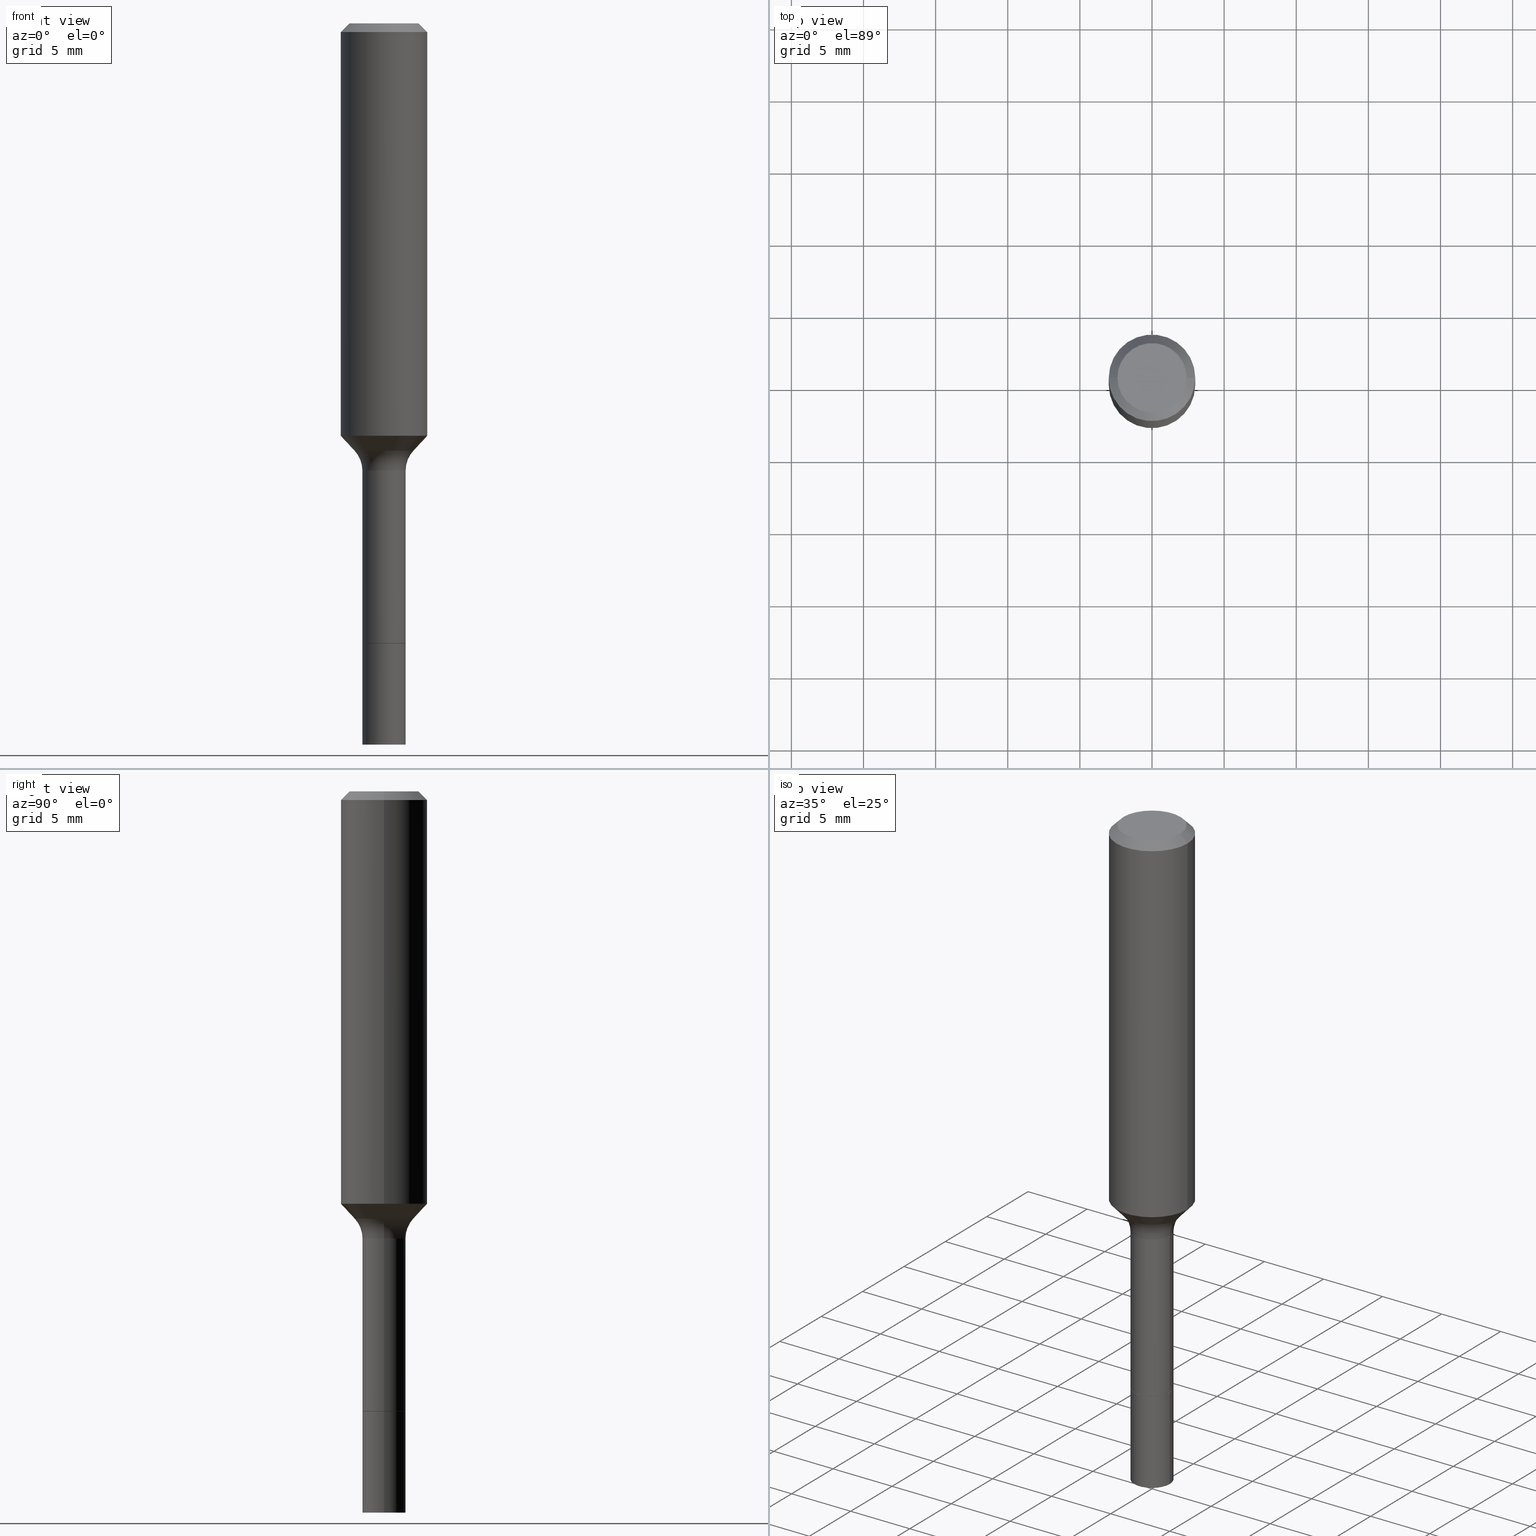
[diagram: canonical four-view strip — front | top / right | iso, engineering-drawing reading convention]
A machine part, canonical four-view strip (front | top / right | iso — engineering-drawing reading convention). The complete STEP part file that produces these views, byte-faithful:
ISO-10303-21;
HEADER;
FILE_DESCRIPTION (( 'STEP AP203' ),
    '1' );
FILE_NAME ('67075.STEP',
    '2025-04-01T15:27:39',
    ( '' ),
    ( '' ),
    'SwSTEP 2.0',
    'SolidWorks 2024',
    '' );
FILE_SCHEMA (( 'CONFIG_CONTROL_DESIGN' ));
ENDSEC;

DATA;
#1 = TOROIDAL_SURFACE ( 'NONE', #412, 0.1390499999999999514, 0.08000000000000001554 ) ;
#2 = CALENDAR_DATE ( 2025, 1, 4 ) ;
#3 = LINE ( 'NONE', #334, #376 ) ;
#4 = ADVANCED_FACE ( 'NONE', ( #387 ), #123, .T. ) ;
#5 = CARTESIAN_POINT ( 'NONE',  ( 7.545787641473140628E-46, -1.077338491108201769E-31, -3.085620075131671975E-17 ) ) ;
#6 = DIRECTION ( 'NONE',  ( 1.000000000000000000, -6.982962677686264344E-15, 0.000000000000000000 ) ) ;
#7 = SECURITY_CLASSIFICATION_LEVEL ( 'unclassified' ) ;
#8 = CARTESIAN_POINT ( 'NONE',  ( 0.1181000000000001354, -4.754922007517866513E-15, -1.125663789623847055 ) ) ;
#9 = CARTESIAN_POINT ( 'NONE',  ( 4.138955954468343780E-29, -5.909332165992023872E-15, -1.692500000000000115 ) ) ;
#10 = LINE ( 'NONE', #65, #97 ) ;
#11 = CALENDAR_DATE ( 2025, 1, 4 ) ;
#12 = ORIENTED_EDGE ( 'NONE', *, *, #456, .F. ) ;
#13 = VECTOR ( 'NONE', #134, 39.37007874015748143 ) ;
#14 = LOCAL_TIME ( 11, 27, 39.00000000000000000, #257 ) ;
#15 = DIRECTION ( 'NONE',  ( -1.000000000000000000, 7.105427357601005014E-15, 0.000000000000000000 ) ) ;
#16 = VERTEX_POINT ( 'NONE', #320 ) ;
#17 = CC_DESIGN_PERSON_AND_ORGANIZATION_ASSIGNMENT ( #303, #95, ( #31 ) ) ;
#18 = ORIENTED_EDGE ( 'NONE', *, *, #145, .T. ) ;
#19 = EDGE_LOOP ( 'NONE', ( #71, #416, #506, #144 ) ) ;
#20 = CONICAL_SURFACE ( 'NONE', #237, 0.1180999999999999966, 0.7853981633974461696 ) ;
#21 = DATE_AND_TIME ( #239, #105 ) ;
#22 = PRODUCT_DEFINITION_SHAPE ( 'NONE', 'NONE',  #495 ) ;
#23 = AXIS2_PLACEMENT_3D ( 'NONE', #274, #151, #34 ) ;
#24 = ORIENTED_EDGE ( 'NONE', *, *, #78, .F. ) ;
#25 = APPROVAL ( #174, 'UNSPECIFIED' ) ;
#26 = PERSON_AND_ORGANIZATION ( #210, #59 ) ;
#27 = FACE_OUTER_BOUND ( 'NONE', #278, .T. ) ;
#28 = CARTESIAN_POINT ( 'NONE',  ( 0.000000000000000000, 0.000000000000000000, 0.000000000000000000 ) ) ;
#29 = EDGE_CURVE ( 'NONE', #461, #186, #507, .T. ) ;
#30 = VECTOR ( 'NONE', #33, 39.37007874015748143 ) ;
#31 = PRODUCT_DEFINITION_FORMATION_WITH_SPECIFIED_SOURCE ( 'ANY', '', #189, .NOT_KNOWN. ) ;
#32 = DIRECTION ( 'NONE',  ( -2.438088387897960049E-29, 3.491481338843145188E-15, 1.000000000000000000 ) ) ;
#33 = DIRECTION ( 'NONE',  ( -2.445468806185136877E-29, 3.491481338843145188E-15, 1.000000000000000000 ) ) ;
#34 = DIRECTION ( 'NONE',  ( 1.000000000000000000, -6.982962677686265922E-15, 0.000000000000000000 ) ) ;
#35 = DESIGN_CONTEXT ( 'detailed design', #359, 'design' ) ;
#36 = ORIENTED_EDGE ( 'NONE', *, *, #178, .F. ) ;
#37 = ADVANCED_FACE ( 'NONE', ( #122 ), #38, .T. ) ;
#38 = CYLINDRICAL_SURFACE ( 'NONE', #23, 0.05905000000000006077 ) ;
#39 = AXIS2_PLACEMENT_3D ( 'NONE', #326, #49, #88 ) ;
#40 = ORIENTED_EDGE ( 'NONE', *, *, #223, .T. ) ;
#41 = AXIS2_PLACEMENT_3D ( 'NONE', #46, #415, #125 ) ;
#42 = CARTESIAN_POINT ( 'NONE',  ( -0.1181000000000001354, -3.091083144350438870E-15, -1.125663789623847055 ) ) ;
#43 = LINE ( 'NONE', #98, #462 ) ;
#44 = APPROVAL ( #307, 'UNSPECIFIED' ) ;
#45 = SECURITY_CLASSIFICATION ( '', '', #7 ) ;
#46 = CARTESIAN_POINT ( 'NONE',  ( 2.984694677948959472E-29, -4.261352974058059028E-15, -1.220499999999999918 ) ) ;
#47 = DATE_AND_TIME ( #336, #14 ) ;
#48 = PLANE ( 'NONE',  #255 ) ;
#49 = DIRECTION ( 'NONE',  ( -2.445468806185136597E-29, 3.491481338843145583E-15, 1.000000000000000000 ) ) ;
#50 = EDGE_CURVE ( 'NONE', #309, #403, #264, .T. ) ;
#51 = FACE_OUTER_BOUND ( 'NONE', #313, .T. ) ;
#52 = AXIS2_PLACEMENT_3D ( 'NONE', #77, #364, #156 ) ;
#53 = DIRECTION ( 'NONE',  ( -2.445468806185136597E-29, 3.491481338843145583E-15, 1.000000000000000000 ) ) ;
#54 = DIRECTION ( 'NONE',  ( 1.000000000000000000, -6.982962677686265133E-15, 0.000000000000000000 ) ) ;
#55 = CARTESIAN_POINT ( 'NONE',  ( 4.137733220065251539E-29, -5.907586425322602368E-15, -1.692000000000000171 ) ) ;
#56 = MECHANICAL_CONTEXT ( 'NONE', #328, 'mechanical' ) ;
#57 = ADVANCED_FACE ( 'NONE', ( #196 ), #201, .F. ) ;
#58 = ORIENTED_EDGE ( 'NONE', *, *, #434, .T. ) ;
#59 = ORGANIZATION ( 'UNSPECIFIED', 'UNSPECIFIED', '' ) ;
#60 = ORIENTED_EDGE ( 'NONE', *, *, #149, .F. ) ;
#61 = AXIS2_PLACEMENT_3D ( 'NONE', #175, #404, #339 ) ;
#62 = DIRECTION ( 'NONE',  ( -2.445468806185136597E-29, 3.491481338843145583E-15, 1.000000000000000000 ) ) ;
#63 = PRODUCT_RELATED_PRODUCT_CATEGORY ( 'detail', '', ( #189 ) ) ;
#64 = DIRECTION ( 'NONE',  ( -2.445468806185136597E-29, 3.491481338843145583E-15, 1.000000000000000000 ) ) ;
#65 = CARTESIAN_POINT ( 'NONE',  ( 0.05854999999999999788, -6.318184630770554996E-15, -1.692500000000000115 ) ) ;
#66 = COORDINATED_UNIVERSAL_TIME_OFFSET ( 5, 0, .BEHIND. ) ;
#67 = EDGE_LOOP ( 'NONE', ( #24, #430, #85, #418 ) ) ;
#68 = DIMENSIONAL_EXPONENTS ( 1.000000000000000000, 0.000000000000000000, 0.000000000000000000, 0.000000000000000000, 0.000000000000000000, 0.000000000000000000, 0.000000000000000000 ) ;
#69 = COORDINATED_UNIVERSAL_TIME_OFFSET ( 5, 0, .BEHIND. ) ;
#70 = ADVANCED_FACE ( 'NONE', ( #204 ), #360, .T. ) ;
#71 = ORIENTED_EDGE ( 'NONE', *, *, #500, .F. ) ;
#72 = CIRCLE ( 'NONE', #350, 0.08054170387046662161 ) ;
#73 = AXIS2_PLACEMENT_3D ( 'NONE', #475, #277, #251 ) ;
#74 = PERSON_AND_ORGANIZATION_ROLE ( 'classification_officer' ) ;
#75 = ORIENTED_EDGE ( 'NONE', *, *, #149, .T. ) ;
#76 = DIRECTION ( 'NONE',  ( -1.000000000000000000, 6.982962677686265922E-15, -4.876176775795935793E-29 ) ) ;
#77 = CARTESIAN_POINT ( 'NONE',  ( 4.138955954468343780E-29, -5.909332165992023872E-15, -1.692500000000000115 ) ) ;
#78 = EDGE_CURVE ( 'NONE', #192, #285, #394, .T. ) ;
#79 = FACE_OUTER_BOUND ( 'NONE', #348, .T. ) ;
#80 = CARTESIAN_POINT ( 'NONE',  ( -0.08054170387046662161, -3.498574984166659824E-15, -1.165940131195000173 ) ) ;
#81 = CC_DESIGN_PERSON_AND_ORGANIZATION_ASSIGNMENT ( #227, #381, ( #189 ) ) ;
#82 = AXIS2_PLACEMENT_3D ( 'NONE', #409, #263, #370 ) ;
#83 = FACE_OUTER_BOUND ( 'NONE', #181, .T. ) ;
#84 = CARTESIAN_POINT ( 'NONE',  ( 4.138955954468343780E-29, -5.909332165992023872E-15, -1.692500000000000115 ) ) ;
#85 = ORIENTED_EDGE ( 'NONE', *, *, #384, .T. ) ;
#86 = CARTESIAN_POINT ( 'NONE',  ( 0.1181000000000000660, -8.246878922347485584E-16, 5.758764772215003944E-30 ) ) ;
#87 = ADVANCED_FACE ( 'NONE', ( #401 ), #365, .T. ) ;
#88 = DIRECTION ( 'NONE',  ( 1.000000000000000000, -6.982962677686262766E-15, 0.000000000000000000 ) ) ;
#89 = DIRECTION ( 'NONE',  ( -2.445468806185136597E-29, 3.491481338843145583E-15, 1.000000000000000000 ) ) ;
#90 = DIRECTION ( 'NONE',  ( -2.445468806185136877E-29, 3.491481338843145188E-15, 1.000000000000000000 ) ) ;
#91 = CARTESIAN_POINT ( 'NONE',  ( -0.1390499999999999514, -3.273343299983640064E-15, -1.220499999999999918 ) ) ;
#92 = CARTESIAN_POINT ( 'NONE',  ( 4.813905344975441835E-29, -6.872981015512731707E-15, -1.968500000000000139 ) ) ;
#93 = LINE ( 'NONE', #177, #482 ) ;
#94 = AXIS2_PLACEMENT_3D ( 'NONE', #9, #53, #6 ) ;
#95 = PERSON_AND_ORGANIZATION_ROLE ( 'creator' ) ;
#96 = FACE_OUTER_BOUND ( 'NONE', #67, .T. ) ;
#97 = VECTOR ( 'NONE', #447, 39.37007874015748143 ) ;
#98 = CARTESIAN_POINT ( 'NONE',  ( 0.05905000000000006077, -6.321676112109398003E-15, -1.692500000000000115 ) ) ;
#99 = CARTESIAN_POINT ( 'NONE',  ( -0.09447999999999998066, 7.009847083995354710E-16, -3.085620075132147757E-17 ) ) ;
#100 = CARTESIAN_POINT ( 'NONE',  ( 0.05905000000000000526, -6.319930371439977289E-15, -1.692000000000000171 ) ) ;
#101 = CARTESIAN_POINT ( 'NONE',  ( 0.000000000000000000, 0.000000000000000000, 0.000000000000000000 ) ) ;
#102 = ADVANCED_FACE ( 'NONE', ( #83 ), #20, .T. ) ;
#103 = ORIENTED_EDGE ( 'NONE', *, *, #145, .F. ) ;
#104 = ORIENTED_EDGE ( 'NONE', *, *, #414, .T. ) ;
#105 = LOCAL_TIME ( 11, 27, 39.00000000000000000, #69 ) ;
#106 = CIRCLE ( 'NONE', #146, 0.05905000000000000526 ) ;
#107 = AXIS2_PLACEMENT_3D ( 'NONE', #483, #478, #208 ) ;
#108 = ORIENTED_EDGE ( 'NONE', *, *, #178, .T. ) ;
#109 = ORIENTED_EDGE ( 'NONE', *, *, #262, .T. ) ;
#110 = VERTEX_POINT ( 'NONE', #512 ) ;
#111 = CIRCLE ( 'NONE', #73, 0.09447999999999998066 ) ;
#112 = ADVANCED_FACE ( 'NONE', ( #27 ), #1, .F. ) ;
#113 = CARTESIAN_POINT ( 'NONE',  ( 0.1390499999999999514, -5.232333934390334022E-15, -1.220499999999999918 ) ) ;
#114 = ORIENTED_EDGE ( 'NONE', *, *, #209, .T. ) ;
#115 = FACE_OUTER_BOUND ( 'NONE', #472, .T. ) ;
#116 = EDGE_CURVE ( 'NONE', #200, #461, #111, .T. ) ;
#117 = DIRECTION ( 'NONE',  ( -2.445468806185136597E-29, 3.491481338843145583E-15, 1.000000000000000000 ) ) ;
#118 = EDGE_LOOP ( 'NONE', ( #229, #267, #235, #126 ) ) ;
#119 = DIRECTION ( 'NONE',  ( -2.445468806185136597E-29, 3.491481338843145583E-15, 1.000000000000000000 ) ) ;
#120 = AXIS2_PLACEMENT_3D ( 'NONE', #138, #62, #231 ) ;
#121 = ORIENTED_EDGE ( 'NONE', *, *, #232, .F. ) ;
#122 = FACE_OUTER_BOUND ( 'NONE', #311, .T. ) ;
#123 = CONICAL_SURFACE ( 'NONE', #190, 0.05854999999999999788, 0.7853981633975591903 ) ;
#124 = CC_DESIGN_DATE_AND_TIME_ASSIGNMENT ( #47, #296, ( #495 ) ) ;
#125 = DIRECTION ( 'NONE',  ( 1.000000000000000000, -6.982962677686263555E-15, 0.000000000000000000 ) ) ;
#126 = ORIENTED_EDGE ( 'NONE', *, *, #347, .F. ) ;
#127 = DIRECTION ( 'NONE',  ( 1.000000000000000000, -6.982962677686267499E-15, 4.876176775795936353E-29 ) ) ;
#128 = CARTESIAN_POINT ( 'NONE',  ( 4.138955954468343780E-29, -5.909332165992023872E-15, -1.692500000000000115 ) ) ;
#129 = PERSON_AND_ORGANIZATION ( #210, #59 ) ;
#130 = TOROIDAL_SURFACE ( 'NONE', #120, 0.1390499999999999514, 0.08000000000000001554 ) ;
#131 = CARTESIAN_POINT ( 'NONE',  ( 2.851270220716778580E-29, -4.070858210275671756E-15, -1.165940131195000173 ) ) ;
#132 = CARTESIAN_POINT ( 'NONE',  ( -0.05904999999999999832, -5.971581105286039085E-15, -1.692500000000000115 ) ) ;
#133 = APPROVAL_ROLE ( '' ) ;
#134 = DIRECTION ( 'NONE',  ( -0.7071067811866259545, 7.493145998870638150E-15, 0.7071067811864690800 ) ) ;
#135 = DATE_AND_TIME ( #11, #386 ) ;
#136 = DIRECTION ( 'NONE',  ( -2.445468806185136597E-29, 3.491481338843145583E-15, 1.000000000000000000 ) ) ;
#137 = CARTESIAN_POINT ( 'NONE',  ( 0.08054170387046662161, -4.633277922400399410E-15, -1.165940131195000173 ) ) ;
#138 = CARTESIAN_POINT ( 'NONE',  ( 2.984694677948959472E-29, -4.261352974058059028E-15, -1.220499999999999918 ) ) ;
#139 = AXIS2_PLACEMENT_3D ( 'NONE', #340, #406, #335 ) ;
#140 = APPROVAL_DATE_TIME ( #417, #44 ) ;
#141 = ADVANCED_FACE ( 'NONE', ( #426 ), #279, .F. ) ;
#142 = VERTEX_POINT ( 'NONE', #318 ) ;
#143 = ORIENTED_EDGE ( 'NONE', *, *, #78, .T. ) ;
#144 = ORIENTED_EDGE ( 'NONE', *, *, #171, .T. ) ;
#145 = EDGE_CURVE ( 'NONE', #163, #110, #304, .T. ) ;
#146 = AXIS2_PLACEMENT_3D ( 'NONE', #55, #212, #331 ) ;
#147 = EDGE_LOOP ( 'NONE', ( #12, #206 ) ) ;
#148 = EDGE_LOOP ( 'NONE', ( #157, #109, #203, #273 ) ) ;
#149 = EDGE_CURVE ( 'NONE', #163, #369, #358, .T. ) ;
#150 = EDGE_CURVE ( 'NONE', #142, #369, #269, .T. ) ;
#151 = DIRECTION ( 'NONE',  ( -2.445468806185136597E-29, 3.491481338843145583E-15, 1.000000000000000000 ) ) ;
#152 = CIRCLE ( 'NONE', #139, 0.1181000000000001354 ) ;
#153 = AXIS2_PLACEMENT_3D ( 'NONE', #131, #211, #477 ) ;
#154 = ORIENTED_EDGE ( 'NONE', *, *, #310, .T. ) ;
#155 = ADVANCED_FACE ( 'NONE', ( #115 ), #431, .T. ) ;
#156 = DIRECTION ( 'NONE',  ( 1.000000000000000000, -6.982962677686273021E-15, 0.000000000000000000 ) ) ;
#157 = ORIENTED_EDGE ( 'NONE', *, *, #195, .T. ) ;
#158 = DIRECTION ( 'NONE',  ( 1.000000000000000000, -6.982962677686265922E-15, 4.876176775795935793E-29 ) ) ;
#159 = VERTEX_POINT ( 'NONE', #432 ) ;
#160 = CARTESIAN_POINT ( 'NONE',  ( 2.984694677948959472E-29, -4.261352974058059028E-15, -1.220499999999999918 ) ) ;
#161 = CIRCLE ( 'NONE', #450, 0.1180999999999999966 ) ;
#162 = AXIS2_PLACEMENT_3D ( 'NONE', #372, #516, #256 ) ;
#163 = VERTEX_POINT ( 'NONE', #442 ) ;
#164 = CARTESIAN_POINT ( 'NONE',  ( 4.138955954468343780E-29, -5.909332165992023872E-15, -1.692500000000000115 ) ) ;
#165 = CARTESIAN_POINT ( 'NONE',  ( -0.05854999999999999788, -5.490660167030374076E-15, -1.692500000000000115 ) ) ;
#166 = ADVANCED_FACE ( 'NONE', ( #96 ), #312, .T. ) ;
#167 = CARTESIAN_POINT ( 'NONE',  ( 2.984694677948959472E-29, -4.261352974058059028E-15, -1.220499999999999918 ) ) ;
#168 = APPLICATION_PROTOCOL_DEFINITION ( 'international standard', 'config_control_design', 1994, #328 ) ;
#169 = AXIS2_PLACEMENT_3D ( 'NONE', #395, #117, #280 ) ;
#170 = DIRECTION ( 'NONE',  ( -2.445468806185136597E-29, 3.491481338843145583E-15, 1.000000000000000000 ) ) ;
#171 = EDGE_CURVE ( 'NONE', #403, #16, #352, .T. ) ;
#172 = DIRECTION ( 'NONE',  ( -2.445468806185136597E-29, 3.491481338843145583E-15, 1.000000000000000000 ) ) ;
#173 = DIRECTION ( 'NONE',  ( -2.445468806185136597E-29, 3.491481338843145583E-15, 1.000000000000000000 ) ) ;
#174 = APPROVAL_STATUS ( 'not_yet_approved' ) ;
#175 = CARTESIAN_POINT ( 'NONE',  ( 5.776197320209328408E-31, -8.246878922347560526E-17, -0.02362000000000014435 ) ) ;
#176 = FACE_OUTER_BOUND ( 'NONE', #226, .T. ) ;
#177 = CARTESIAN_POINT ( 'NONE',  ( 0.05904999999999997057, -4.123439461173738848E-16, 2.879382386107498819E-30 ) ) ;
#178 = EDGE_CURVE ( 'NONE', #16, #403, #228, .T. ) ;
#179 = CIRCLE ( 'NONE', #505, 0.05904999999999999832 ) ;
#180 = AXIS2_PLACEMENT_3D ( 'NONE', #337, #136, #288 ) ;
#181 = EDGE_LOOP ( 'NONE', ( #496, #240, #382, #250 ) ) ;
#182 =( CONVERSION_BASED_UNIT ( 'INCH', #517 ) LENGTH_UNIT ( ) NAMED_UNIT ( #68 ) );
#183 = ORIENTED_EDGE ( 'NONE', *, *, #50, .F. ) ;
#184 = DATE_TIME_ROLE ( 'classification_date' ) ;
#185 = ORIENTED_EDGE ( 'NONE', *, *, #500, .T. ) ;
#186 = VERTEX_POINT ( 'NONE', #407 ) ;
#187 = CIRCLE ( 'NONE', #464, 0.08054170387046662161 ) ;
#188 = ADVANCED_BREP_SHAPE_REPRESENTATION ( '67075', ( #436, #433, #419 ), #197 ) ;
#189 = PRODUCT ( '67075', '67075', '', ( #56 ) ) ;
#190 = AXIS2_PLACEMENT_3D ( 'NONE', #270, #64, #389 ) ;
#191 = APPROVAL_STATUS ( 'not_yet_approved' ) ;
#192 = VERTEX_POINT ( 'NONE', #219 ) ;
#193 = ADVANCED_FACE ( 'NONE', ( #438 ), #378, .T. ) ;
#194 = CARTESIAN_POINT ( 'NONE',  ( 3.772893820736570314E-46, -5.386692455541008845E-32, -1.542810037565835988E-17 ) ) ;
#195 = EDGE_CURVE ( 'NONE', #502, #159, #283, .T. ) ;
#196 = FACE_OUTER_BOUND ( 'NONE', #147, .T. ) ;
#197 =( GEOMETRIC_REPRESENTATION_CONTEXT ( 3 ) GLOBAL_UNCERTAINTY_ASSIGNED_CONTEXT ( ( #315 ) ) GLOBAL_UNIT_ASSIGNED_CONTEXT ( ( #182, #410, #408 ) ) REPRESENTATION_CONTEXT ( 'NONE', 'WORKASPACE' ) );
#198 = VECTOR ( 'NONE', #254, 39.37007874015748143 ) ;
#199 = DIRECTION ( 'NONE',  ( -2.445468806185136597E-29, 3.491481338843145583E-15, 1.000000000000000000 ) ) ;
#200 = VERTEX_POINT ( 'NONE', #518 ) ;
#201 = PLANE ( 'NONE',  #458 ) ;
#202 = EDGE_CURVE ( 'NONE', #349, #186, #367, .T. ) ;
#203 = ORIENTED_EDGE ( 'NONE', *, *, #171, .F. ) ;
#204 = FACE_OUTER_BOUND ( 'NONE', #388, .T. ) ;
#205 = VECTOR ( 'NONE', #504, 39.37007874015748143 ) ;
#206 = ORIENTED_EDGE ( 'NONE', *, *, #299, .F. ) ;
#207 = FACE_OUTER_BOUND ( 'NONE', #19, .T. ) ;
#208 = DIRECTION ( 'NONE',  ( 1.000000000000000000, -6.982962677686266711E-15, 4.876176775795936353E-29 ) ) ;
#209 = EDGE_CURVE ( 'NONE', #276, #349, #330, .T. ) ;
#210 = PERSON ( 'UNSPECIFIED', 'UNSPECIFIED', 'UNSPECIFIED', ('UNSPECIFIED'), ('UNSPECIFIED'), ('UNSPECIFIED') ) ;
#211 = DIRECTION ( 'NONE',  ( -2.445468806185136597E-29, 3.491481338843145583E-15, 1.000000000000000000 ) ) ;
#212 = DIRECTION ( 'NONE',  ( -2.445468806185136597E-29, 3.491481338843145583E-15, 1.000000000000000000 ) ) ;
#213 = EDGE_CURVE ( 'NONE', #200, #349, #3, .T. ) ;
#214 = DIRECTION ( 'NONE',  ( 0.000000000000000000, 0.000000000000000000, 1.000000000000000000 ) ) ;
#215 = DIRECTION ( 'NONE',  ( 2.438088387897960049E-29, -3.491481338843145188E-15, -1.000000000000000000 ) ) ;
#216 = DIRECTION ( 'NONE',  ( 0.6819983600624957010, -2.208861293262447404E-15, 0.7313537016191730133 ) ) ;
#217 = LOCAL_TIME ( 11, 27, 39.00000000000000000, #377 ) ;
#218 = VECTOR ( 'NONE', #216, 39.37007874015748854 ) ;
#219 = CARTESIAN_POINT ( 'NONE',  ( -0.08054170387046642732, -3.498574984166661401E-15, -1.165940131195000173 ) ) ;
#220 = CYLINDRICAL_SURFACE ( 'NONE', #107, 0.1181000000000000660 ) ;
#221 = PERSON_AND_ORGANIZATION_ROLE ( 'design_supplier' ) ;
#222 = CARTESIAN_POINT ( 'NONE',  ( -0.05854999999999999788, -5.493309394204485278E-15, -1.692500000000000115 ) ) ;
#223 = EDGE_CURVE ( 'NONE', #285, #276, #451, .T. ) ;
#224 = DIRECTION ( 'NONE',  ( 1.000000000000000000, -6.982962677686267499E-15, 4.875432709231658792E-29 ) ) ;
#225 = FACE_OUTER_BOUND ( 'NONE', #287, .T. ) ;
#226 = EDGE_LOOP ( 'NONE', ( #353, #40, #114, #424 ) ) ;
#227 = PERSON_AND_ORGANIZATION ( #210, #59 ) ;
#228 = CIRCLE ( 'NONE', #41, 0.05904999999999994281 ) ;
#229 = ORIENTED_EDGE ( 'NONE', *, *, #253, .F. ) ;
#230 = APPROVAL_PERSON_ORGANIZATION ( #484, #25, #133 ) ;
#231 = DIRECTION ( 'NONE',  ( 1.000000000000000000, -6.982962677686265133E-15, 4.883557194083112340E-29 ) ) ;
#232 = EDGE_CURVE ( 'NONE', #110, #163, #385, .T. ) ;
#233 = VERTEX_POINT ( 'NONE', #300 ) ;
#234 = ADVANCED_FACE ( 'NONE', ( #297 ), #48, .F. ) ;
#235 = ORIENTED_EDGE ( 'NONE', *, *, #308, .T. ) ;
#236 = ORIENTED_EDGE ( 'NONE', *, *, #262, .F. ) ;
#237 = AXIS2_PLACEMENT_3D ( 'NONE', #249, #241, #325 ) ;
#238 = CLOSED_SHELL ( 'NONE', ( #342, #102, #70, #489, #112, #193, #155, #290, #166, #363, #281, #141, #57, #4 ) ) ;
#239 = CALENDAR_DATE ( 2025, 1, 4 ) ;
#240 = ORIENTED_EDGE ( 'NONE', *, *, #213, .T. ) ;
#241 = DIRECTION ( 'NONE',  ( 2.445468806185136597E-29, -3.491481338843145583E-15, -1.000000000000000000 ) ) ;
#242 = ORIENTED_EDGE ( 'NONE', *, *, #29, .T. ) ;
#243 = DIRECTION ( 'NONE',  ( 2.438088387897960049E-29, -3.491481338843145188E-15, -1.000000000000000000 ) ) ;
#244 = CC_DESIGN_SECURITY_CLASSIFICATION ( #45, ( #31 ) ) ;
#245 = ORIENTED_EDGE ( 'NONE', *, *, #116, .T. ) ;
#246 = DIRECTION ( 'NONE',  ( 1.000000000000000000, -6.982962677686275388E-15, 0.000000000000000000 ) ) ;
#247 = AXIS2_PLACEMENT_3D ( 'NONE', #84, #199, #322 ) ;
#248 = EDGE_CURVE ( 'NONE', #192, #309, #187, .T. ) ;
#249 = CARTESIAN_POINT ( 'NONE',  ( 5.776197320209328408E-31, -8.246878922347560526E-17, -0.02362000000000014435 ) ) ;
#250 = ORIENTED_EDGE ( 'NONE', *, *, #29, .F. ) ;
#251 = DIRECTION ( 'NONE',  ( 1.000000000000000000, -6.982962677686267499E-15, 4.875432709231658792E-29 ) ) ;
#252 = ORIENTED_EDGE ( 'NONE', *, *, #402, .T. ) ;
#253 = EDGE_CURVE ( 'NONE', #492, #159, #439, .T. ) ;
#254 = DIRECTION ( 'NONE',  ( -2.445468806185136877E-29, 3.491481338843145188E-15, 1.000000000000000000 ) ) ;
#255 = AXIS2_PLACEMENT_3D ( 'NONE', #164, #215, #289 ) ;
#256 = DIRECTION ( 'NONE',  ( 1.000000000000000000, -6.982962677686272233E-15, 0.000000000000000000 ) ) ;
#257 = COORDINATED_UNIVERSAL_TIME_OFFSET ( 5, 0, .BEHIND. ) ;
#258 = CARTESIAN_POINT ( 'NONE',  ( 0.000000000000000000, 0.000000000000000000, 0.000000000000000000 ) ) ;
#259 = CARTESIAN_POINT ( 'NONE',  ( 2.752775683777265765E-29, -3.930234115283118251E-15, -1.125663789623847055 ) ) ;
#260 = CONICAL_SURFACE ( 'NONE', #39, 0.08054170387046662161, 0.7504915783575579757 ) ;
#261 = CIRCLE ( 'NONE', #324, 0.05854999999999999788 ) ;
#262 = EDGE_CURVE ( 'NONE', #159, #16, #481, .T. ) ;
#263 = DIRECTION ( 'NONE',  ( -2.445468806185136597E-29, 3.491481338843145583E-15, 1.000000000000000000 ) ) ;
#264 = CIRCLE ( 'NONE', #420, 0.08000000000000000167 ) ;
#265 = DIRECTION ( 'NONE',  ( -2.445468806185136597E-29, 3.491481338843145583E-15, 1.000000000000000000 ) ) ;
#266 = DIRECTION ( 'NONE',  ( 1.000000000000000000, 0.000000000000000000, 0.000000000000000000 ) ) ;
#267 = ORIENTED_EDGE ( 'NONE', *, *, #299, .T. ) ;
#268 = CIRCLE ( 'NONE', #94, 0.05854999999999999788 ) ;
#269 = CIRCLE ( 'NONE', #52, 0.05904999999999999832 ) ;
#270 = CARTESIAN_POINT ( 'NONE',  ( 4.138955954468343780E-29, -5.909332165992023872E-15, -1.692500000000000115 ) ) ;
#271 = ADVANCED_FACE ( 'NONE', ( #445 ), #380, .T. ) ;
#272 = ORIENTED_EDGE ( 'NONE', *, *, #308, .F. ) ;
#273 = ORIENTED_EDGE ( 'NONE', *, *, #310, .F. ) ;
#274 = CARTESIAN_POINT ( 'NONE',  ( 4.138955954468343780E-29, -5.909332165992023872E-15, -1.692500000000000115 ) ) ;
#275 = AXIS2_PLACEMENT_3D ( 'NONE', #258, #89, #127 ) ;
#276 = VERTEX_POINT ( 'NONE', #8 ) ;
#277 = DIRECTION ( 'NONE',  ( -2.445468806185136597E-29, 3.491481338843145583E-15, 1.000000000000000000 ) ) ;
#278 = EDGE_LOOP ( 'NONE', ( #465, #185, #108, #183 ) ) ;
#279 = PLANE ( 'NONE',  #425 ) ;
#280 = DIRECTION ( 'NONE',  ( 1.000000000000000000, -6.982962677686264344E-15, 0.000000000000000000 ) ) ;
#281 = ADVANCED_FACE ( 'NONE', ( #51 ), #292, .T. ) ;
#282 = DIRECTION ( 'NONE',  ( 1.000000000000000000, -6.982962677686267499E-15, 4.876176775795936353E-29 ) ) ;
#283 = CIRCLE ( 'NONE', #162, 0.05905000000000000526 ) ;
#284 = CLOSED_SHELL ( 'NONE', ( #37, #271, #87, #234 ) ) ;
#285 = VERTEX_POINT ( 'NONE', #42 ) ;
#286 = CARTESIAN_POINT ( 'NONE',  ( 4.138955954468343780E-29, -5.909332165992023872E-15, -1.692500000000000115 ) ) ;
#287 = EDGE_LOOP ( 'NONE', ( #104, #143, #400, #391 ) ) ;
#288 = DIRECTION ( 'NONE',  ( 1.000000000000000000, -6.982962677686275388E-15, 0.000000000000000000 ) ) ;
#289 = DIRECTION ( 'NONE',  ( -1.000000000000000000, 6.982962677686265922E-15, -4.876176775795935793E-29 ) ) ;
#290 = ADVANCED_FACE ( 'NONE', ( #207 ), #130, .F. ) ;
#291 = CC_DESIGN_APPROVAL ( #368, ( #45 ) ) ;
#292 = CONICAL_SURFACE ( 'NONE', #61, 0.1180999999999999966, 0.7853981633974461696 ) ;
#293 = PERSON_AND_ORGANIZATION_ROLE ( 'creator' ) ;
#294 = CARTESIAN_POINT ( 'NONE',  ( -0.05904999999999997057, 4.195754854663389506E-16, -2.904631170795520841E-30 ) ) ;
#295 = LINE ( 'NONE', #137, #218 ) ;
#296 = DATE_TIME_ROLE ( 'creation_date' ) ;
#297 = FACE_OUTER_BOUND ( 'NONE', #459, .T. ) ;
#298 = DIRECTION ( 'NONE',  ( -2.445468806185136597E-29, 3.491481338843145583E-15, 1.000000000000000000 ) ) ;
#299 = EDGE_CURVE ( 'NONE', #492, #233, #261, .T. ) ;
#300 = CARTESIAN_POINT ( 'NONE',  ( 0.05854999999999999788, -6.318184630770554996E-15, -1.692500000000000115 ) ) ;
#301 = CARTESIAN_POINT ( 'NONE',  ( 0.05904999999999994281, -4.673696920175432370E-15, -1.220499999999999918 ) ) ;
#302 = CARTESIAN_POINT ( 'NONE',  ( 0.08054170387046642732, -4.633277922400398622E-15, -1.165940131195000173 ) ) ;
#303 = PERSON_AND_ORGANIZATION ( #210, #59 ) ;
#304 = CIRCLE ( 'NONE', #498, 0.05905000000000011628 ) ;
#305 = CC_DESIGN_APPROVAL ( #25, ( #31 ) ) ;
#306 = CARTESIAN_POINT ( 'NONE',  ( -0.1181000000000000660, 8.391509709326787887E-16, -5.809262341591047287E-30 ) ) ;
#307 = APPROVAL_STATUS ( 'not_yet_approved' ) ;
#308 = EDGE_CURVE ( 'NONE', #233, #502, #10, .T. ) ;
#309 = VERTEX_POINT ( 'NONE', #302 ) ;
#310 = EDGE_CURVE ( 'NONE', #502, #403, #93, .T. ) ;
#311 = EDGE_LOOP ( 'NONE', ( #345, #75, #314, #494 ) ) ;
#312 = CONICAL_SURFACE ( 'NONE', #153, 0.08054170387046662161, 0.7504915783575579757 ) ;
#313 = EDGE_LOOP ( 'NONE', ( #499, #321, #242, #423 ) ) ;
#314 = ORIENTED_EDGE ( 'NONE', *, *, #150, .F. ) ;
#315 = UNCERTAINTY_MEASURE_WITH_UNIT (LENGTH_MEASURE( 1.000000000000000082E-05 ), #182, 'distance_accuracy_value', 'NONE');
#316 = EDGE_CURVE ( 'NONE', #285, #186, #491, .T. ) ;
#317 = ORIENTED_EDGE ( 'NONE', *, *, #347, .T. ) ;
#318 = CARTESIAN_POINT ( 'NONE',  ( 0.05904999999999999832, -6.321676112109398003E-15, -1.692500000000000115 ) ) ;
#319 = VECTOR ( 'NONE', #90, 39.37007874015748143 ) ;
#320 = CARTESIAN_POINT ( 'NONE',  ( -0.05904999999999994281, -4.664894214223991994E-15, -1.220499999999999918 ) ) ;
#321 = ORIENTED_EDGE ( 'NONE', *, *, #434, .F. ) ;
#322 = DIRECTION ( 'NONE',  ( 1.000000000000000000, -6.982962677686265922E-15, 0.000000000000000000 ) ) ;
#323 = DIRECTION ( 'NONE',  ( -2.445468806185136597E-29, 3.491481338843145583E-15, 1.000000000000000000 ) ) ;
#324 = AXIS2_PLACEMENT_3D ( 'NONE', #493, #298, #422 ) ;
#325 = DIRECTION ( 'NONE',  ( -1.000000000000000000, 6.982962677686266711E-15, 0.000000000000000000 ) ) ;
#326 = CARTESIAN_POINT ( 'NONE',  ( 2.851270220716778580E-29, -4.070858210275671756E-15, -1.165940131195000173 ) ) ;
#327 = EDGE_LOOP ( 'NONE', ( #121, #103 ) ) ;
#328 = APPLICATION_CONTEXT ( 'configuration controlled 3d designs of mechanical parts and assemblies' ) ;
#329 = DIRECTION ( 'NONE',  ( 1.000000000000000000, -6.982962677686262766E-15, 0.000000000000000000 ) ) ;
#330 = LINE ( 'NONE', #86, #319 ) ;
#331 = DIRECTION ( 'NONE',  ( 1.000000000000000000, -6.982962677686272233E-15, 0.000000000000000000 ) ) ;
#332 = CARTESIAN_POINT ( 'NONE',  ( 5.776197320209328408E-31, -8.246878922347560526E-17, -0.02362000000000014435 ) ) ;
#333 = APPROVAL_ROLE ( '' ) ;
#334 = CARTESIAN_POINT ( 'NONE',  ( 0.1180999999999999966, -8.926936027602933910E-16, -0.02362000000000014435 ) ) ;
#335 = DIRECTION ( 'NONE',  ( 1.000000000000000000, -6.982962677686265133E-15, 0.000000000000000000 ) ) ;
#336 = CALENDAR_DATE ( 2025, 1, 4 ) ;
#337 = CARTESIAN_POINT ( 'NONE',  ( 4.813905344975441835E-29, -6.872981015512731707E-15, -1.968500000000000139 ) ) ;
#338 = PERSON_AND_ORGANIZATION ( #210, #59 ) ;
#339 = DIRECTION ( 'NONE',  ( -1.000000000000000000, 6.982962677686266711E-15, 0.000000000000000000 ) ) ;
#340 = CARTESIAN_POINT ( 'NONE',  ( 2.752775683777265765E-29, -3.930234115283118251E-15, -1.125663789623847055 ) ) ;
#341 = AXIS2_PLACEMENT_3D ( 'NONE', #91, #454, #15 ) ;
#342 = ADVANCED_FACE ( 'NONE', ( #79 ), #398, .T. ) ;
#343 = DIRECTION ( 'NONE',  ( -2.445468806185136877E-29, 3.491481338843145188E-15, 1.000000000000000000 ) ) ;
#344 = AXIS2_PLACEMENT_3D ( 'NONE', #28, #366, #435 ) ;
#345 = ORIENTED_EDGE ( 'NONE', *, *, #232, .T. ) ;
#346 = LOCAL_TIME ( 11, 27, 39.00000000000000000, #66 ) ;
#347 = EDGE_CURVE ( 'NONE', #159, #502, #106, .T. ) ;
#348 = EDGE_LOOP ( 'NONE', ( #476, #508, #357, #272 ) ) ;
#349 = VERTEX_POINT ( 'NONE', #441 ) ;
#350 = AXIS2_PLACEMENT_3D ( 'NONE', #371, #446, #379 ) ;
#351 = SHAPE_DEFINITION_REPRESENTATION ( #22, #188 ) ;
#352 = CIRCLE ( 'NONE', #490, 0.05904999999999994281 ) ;
#353 = ORIENTED_EDGE ( 'NONE', *, *, #316, .F. ) ;
#354 = CC_DESIGN_PERSON_AND_ORGANIZATION_ASSIGNMENT ( #452, #293, ( #495 ) ) ;
#355 = VECTOR ( 'NONE', #397, 39.37007874015748143 ) ;
#356 = DATE_AND_TIME ( #463, #346 ) ;
#357 = ORIENTED_EDGE ( 'NONE', *, *, #195, .F. ) ;
#358 = LINE ( 'NONE', #429, #205 ) ;
#359 = APPLICATION_CONTEXT ( 'configuration controlled 3d designs of mechanical parts and assemblies' ) ;
#360 = CYLINDRICAL_SURFACE ( 'NONE', #344, 0.1181000000000000660 ) ;
#361 = AXIS2_PLACEMENT_3D ( 'NONE', #509, #119, #282 ) ;
#362 = EDGE_LOOP ( 'NONE', ( #58, #245 ) ) ;
#363 = ADVANCED_FACE ( 'NONE', ( #176 ), #220, .T. ) ;
#364 = DIRECTION ( 'NONE',  ( -2.445468806185136597E-29, 3.491481338843145583E-15, 1.000000000000000000 ) ) ;
#365 = CYLINDRICAL_SURFACE ( 'NONE', #247, 0.05905000000000006077 ) ;
#366 = DIRECTION ( 'NONE',  ( -2.445468806185136597E-29, 3.491481338843145583E-15, 1.000000000000000000 ) ) ;
#367 = CIRCLE ( 'NONE', #82, 0.1180999999999999966 ) ;
#368 = APPROVAL ( #191, 'UNSPECIFIED' ) ;
#369 = VERTEX_POINT ( 'NONE', #132 ) ;
#370 = DIRECTION ( 'NONE',  ( 1.000000000000000000, -6.982962677686266711E-15, 0.000000000000000000 ) ) ;
#371 = CARTESIAN_POINT ( 'NONE',  ( 2.851270220716778580E-29, -4.070858210275671756E-15, -1.165940131195000173 ) ) ;
#372 = CARTESIAN_POINT ( 'NONE',  ( 4.137733220065251539E-29, -5.907586425322602368E-15, -1.692000000000000171 ) ) ;
#373 =( LENGTH_UNIT ( ) NAMED_UNIT ( * ) SI_UNIT ( $, .METRE. ) );
#374 = CARTESIAN_POINT ( 'NONE',  ( 2.851270220716778580E-29, -4.070858210275671756E-15, -1.165940131195000173 ) ) ;
#375 = DIRECTION ( 'NONE',  ( 1.000000000000000000, -6.982962677686273021E-15, 0.000000000000000000 ) ) ;
#376 = VECTOR ( 'NONE', #514, 39.37007874015748143 ) ;
#377 = COORDINATED_UNIVERSAL_TIME_OFFSET ( 5, 0, .BEHIND. ) ;
#378 = CYLINDRICAL_SURFACE ( 'NONE', #275, 0.05904999999999997057 ) ;
#379 = DIRECTION ( 'NONE',  ( 1.000000000000000000, -6.982962677686262766E-15, 0.000000000000000000 ) ) ;
#380 = PLANE ( 'NONE',  #440 ) ;
#381 = PERSON_AND_ORGANIZATION_ROLE ( 'design_owner' ) ;
#382 = ORIENTED_EDGE ( 'NONE', *, *, #202, .T. ) ;
#383 = CIRCLE ( 'NONE', #471, 0.09447999999999998066 ) ;
#384 = EDGE_CURVE ( 'NONE', #309, #276, #295, .T. ) ;
#385 = CIRCLE ( 'NONE', #180, 0.05905000000000011628 ) ;
#386 = LOCAL_TIME ( 11, 27, 39.00000000000000000, #487 ) ;
#387 = FACE_OUTER_BOUND ( 'NONE', #118, .T. ) ;
#388 = EDGE_LOOP ( 'NONE', ( #428, #457, #460, #437 ) ) ;
#389 = DIRECTION ( 'NONE',  ( 1.000000000000000000, -6.982962677686264344E-15, 0.000000000000000000 ) ) ;
#390 = CIRCLE ( 'NONE', #341, 0.08000000000000000167 ) ;
#391 = ORIENTED_EDGE ( 'NONE', *, *, #384, .F. ) ;
#392 = CARTESIAN_POINT ( 'NONE',  ( 4.813905344975441835E-29, -6.872981015512731707E-15, -1.968500000000000139 ) ) ;
#393 = EDGE_CURVE ( 'NONE', #369, #142, #179, .T. ) ;
#394 = LINE ( 'NONE', #80, #511 ) ;
#395 = CARTESIAN_POINT ( 'NONE',  ( 4.138955954468343780E-29, -5.909332165992023872E-15, -1.692500000000000115 ) ) ;
#396 = EDGE_CURVE ( 'NONE', #276, #285, #152, .T. ) ;
#397 = DIRECTION ( 'NONE',  ( -0.7071067811865460184, 2.468850131082241283E-15, -0.7071067811865490160 ) ) ;
#398 = CONICAL_SURFACE ( 'NONE', #169, 0.05854999999999999788, 0.7853981633975591903 ) ;
#399 = CARTESIAN_POINT ( 'NONE',  ( -0.1180999999999999966, 7.422191030112725094E-16, -0.02362000000000014435 ) ) ;
#400 = ORIENTED_EDGE ( 'NONE', *, *, #396, .F. ) ;
#401 = FACE_OUTER_BOUND ( 'NONE', #421, .T. ) ;
#402 = EDGE_CURVE ( 'NONE', #110, #142, #43, .T. ) ;
#403 = VERTEX_POINT ( 'NONE', #301 ) ;
#404 = DIRECTION ( 'NONE',  ( 2.445468806185136597E-29, -3.491481338843145583E-15, -1.000000000000000000 ) ) ;
#405 = AXIS2_PLACEMENT_3D ( 'NONE', #259, #172, #54 ) ;
#406 = DIRECTION ( 'NONE',  ( -2.445468806185136597E-29, 3.491481338843145583E-15, 1.000000000000000000 ) ) ;
#407 = CARTESIAN_POINT ( 'NONE',  ( -0.1180999999999999966, -1.167200481320617671E-15, -0.02362000000000014435 ) ) ;
#408 =( NAMED_UNIT ( * ) SI_UNIT ( $, .STERADIAN. ) SOLID_ANGLE_UNIT ( ) );
#409 = CARTESIAN_POINT ( 'NONE',  ( 5.776197320209328408E-31, -8.246878922347560526E-17, -0.02362000000000014435 ) ) ;
#410 =( NAMED_UNIT ( * ) PLANE_ANGLE_UNIT ( ) SI_UNIT ( $, .RADIAN. ) );
#411 = DIRECTION ( 'NONE',  ( 2.438088387897960049E-29, -3.491481338843145188E-15, -1.000000000000000000 ) ) ;
#412 = AXIS2_PLACEMENT_3D ( 'NONE', #160, #323, #473 ) ;
#413 = PERSON_AND_ORGANIZATION ( #210, #59 ) ;
#414 = EDGE_CURVE ( 'NONE', #309, #192, #72, .T. ) ;
#415 = DIRECTION ( 'NONE',  ( -2.445468806185136597E-29, 3.491481338843145583E-15, 1.000000000000000000 ) ) ;
#416 = ORIENTED_EDGE ( 'NONE', *, *, #414, .F. ) ;
#417 = DATE_AND_TIME ( #2, #217 ) ;
#418 = ORIENTED_EDGE ( 'NONE', *, *, #223, .F. ) ;
#419 = AXIS2_PLACEMENT_3D ( 'NONE', #101, #214, #266 ) ;
#420 = AXIS2_PLACEMENT_3D ( 'NONE', #113, #510, #468 ) ;
#421 = EDGE_LOOP ( 'NONE', ( #60, #18, #252, #513 ) ) ;
#422 = DIRECTION ( 'NONE',  ( 1.000000000000000000, -6.982962677686264344E-15, 0.000000000000000000 ) ) ;
#423 = ORIENTED_EDGE ( 'NONE', *, *, #466, .T. ) ;
#424 = ORIENTED_EDGE ( 'NONE', *, *, #466, .F. ) ;
#425 = AXIS2_PLACEMENT_3D ( 'NONE', #194, #243, #76 ) ;
#426 = FACE_OUTER_BOUND ( 'NONE', #362, .T. ) ;
#427 = APPROVAL_PERSON_ORGANIZATION ( #26, #368, #501 ) ;
#428 = ORIENTED_EDGE ( 'NONE', *, *, #396, .T. ) ;
#429 = CARTESIAN_POINT ( 'NONE',  ( -0.05905000000000006077, -5.489756680525684379E-15, -1.692500000000000115 ) ) ;
#430 = ORIENTED_EDGE ( 'NONE', *, *, #248, .T. ) ;
#431 = CYLINDRICAL_SURFACE ( 'NONE', #361, 0.05904999999999997057 ) ;
#432 = CARTESIAN_POINT ( 'NONE',  ( -0.05905000000000001914, -4.664894214223991205E-15, -1.692000000000000171 ) ) ;
#433 = MANIFOLD_SOLID_BREP ( 'Body-Move/Copy2[2]', #238 ) ;
#434 = EDGE_CURVE ( 'NONE', #461, #200, #383, .T. ) ;
#435 = DIRECTION ( 'NONE',  ( 1.000000000000000000, -6.982962677686266711E-15, 4.876176775795936353E-29 ) ) ;
#436 = MANIFOLD_SOLID_BREP ( 'Body-Move/Copy2[1]', #284 ) ;
#437 = ORIENTED_EDGE ( 'NONE', *, *, #209, .F. ) ;
#438 = FACE_OUTER_BOUND ( 'NONE', #148, .T. ) ;
#439 = LINE ( 'NONE', #222, #13 ) ;
#440 = AXIS2_PLACEMENT_3D ( 'NONE', #92, #411, #449 ) ;
#441 = CARTESIAN_POINT ( 'NONE',  ( 0.1180999999999999966, -9.071566814582237199E-16, -0.02362000000000014435 ) ) ;
#442 = CARTESIAN_POINT ( 'NONE',  ( -0.05905000000000013016, -5.971581105286037508E-15, -1.968500000000000139 ) ) ;
#443 = DIRECTION ( 'NONE',  ( -2.445468806185136597E-29, 3.491481338843145583E-15, 1.000000000000000000 ) ) ;
#444 = CC_DESIGN_DATE_AND_TIME_ASSIGNMENT ( #356, #184, ( #45 ) ) ;
#445 = FACE_OUTER_BOUND ( 'NONE', #327, .T. ) ;
#446 = DIRECTION ( 'NONE',  ( -2.445468806185136597E-29, 3.491481338843145583E-15, 1.000000000000000000 ) ) ;
#447 = DIRECTION ( 'NONE',  ( 0.7071067811866259545, -2.468850131083078659E-15, 0.7071067811864690800 ) ) ;
#448 = APPROVAL_DATE_TIME ( #135, #25 ) ;
#449 = DIRECTION ( 'NONE',  ( -1.000000000000000000, 6.982962677686265922E-15, -4.876176775795935793E-29 ) ) ;
#450 = AXIS2_PLACEMENT_3D ( 'NONE', #332, #265, #515 ) ;
#451 = CIRCLE ( 'NONE', #405, 0.1181000000000001354 ) ;
#452 = PERSON_AND_ORGANIZATION ( #210, #59 ) ;
#453 = CC_DESIGN_PERSON_AND_ORGANIZATION_ASSIGNMENT ( #338, #74, ( #45 ) ) ;
#454 = DIRECTION ( 'NONE',  ( 7.105427357601001859E-15, 1.000000000000000000, -3.491481338843145583E-15 ) ) ;
#455 = ORIENTED_EDGE ( 'NONE', *, *, #150, .T. ) ;
#456 = EDGE_CURVE ( 'NONE', #233, #492, #268, .T. ) ;
#457 = ORIENTED_EDGE ( 'NONE', *, *, #316, .T. ) ;
#458 = AXIS2_PLACEMENT_3D ( 'NONE', #286, #32, #158 ) ;
#459 = EDGE_LOOP ( 'NONE', ( #455, #474 ) ) ;
#460 = ORIENTED_EDGE ( 'NONE', *, *, #202, .F. ) ;
#461 = VERTEX_POINT ( 'NONE', #99 ) ;
#462 = VECTOR ( 'NONE', #486, 39.37007874015748143 ) ;
#463 = CALENDAR_DATE ( 2025, 1, 4 ) ;
#464 = AXIS2_PLACEMENT_3D ( 'NONE', #374, #485, #329 ) ;
#465 = ORIENTED_EDGE ( 'NONE', *, *, #248, .F. ) ;
#466 = EDGE_CURVE ( 'NONE', #186, #349, #161, .T. ) ;
#467 = DIRECTION ( 'NONE',  ( -0.6819983600624957010, 7.399397606724275532E-15, 0.7313537016191730133 ) ) ;
#468 = DIRECTION ( 'NONE',  ( 1.000000000000000000, -6.982962677686271444E-15, 0.000000000000000000 ) ) ;
#469 = DIRECTION ( 'NONE',  ( -2.445468806185136597E-29, 3.491481338843145583E-15, 1.000000000000000000 ) ) ;
#470 = CC_DESIGN_PERSON_AND_ORGANIZATION_ASSIGNMENT ( #413, #221, ( #31 ) ) ;
#471 = AXIS2_PLACEMENT_3D ( 'NONE', #5, #173, #224 ) ;
#472 = EDGE_LOOP ( 'NONE', ( #236, #317, #154, #36 ) ) ;
#473 = DIRECTION ( 'NONE',  ( 1.000000000000000000, -6.982962677686265133E-15, 4.883557194083112340E-29 ) ) ;
#474 = ORIENTED_EDGE ( 'NONE', *, *, #393, .T. ) ;
#475 = CARTESIAN_POINT ( 'NONE',  ( 7.545787641473140628E-46, -1.077338491108201769E-31, -3.085620075131671975E-17 ) ) ;
#476 = ORIENTED_EDGE ( 'NONE', *, *, #456, .T. ) ;
#477 = DIRECTION ( 'NONE',  ( 1.000000000000000000, -6.982962677686262766E-15, 0.000000000000000000 ) ) ;
#478 = DIRECTION ( 'NONE',  ( -2.445468806185136597E-29, 3.491481338843145583E-15, 1.000000000000000000 ) ) ;
#479 = APPLICATION_PROTOCOL_DEFINITION ( 'international standard', 'config_control_design', 1994, #359 ) ;
#480 = APPROVAL_PERSON_ORGANIZATION ( #129, #44, #333 ) ;
#481 = LINE ( 'NONE', #294, #198 ) ;
#482 = VECTOR ( 'NONE', #343, 39.37007874015748143 ) ;
#483 = CARTESIAN_POINT ( 'NONE',  ( 0.000000000000000000, 0.000000000000000000, 0.000000000000000000 ) ) ;
#484 = PERSON_AND_ORGANIZATION ( #210, #59 ) ;
#485 = DIRECTION ( 'NONE',  ( -2.445468806185136597E-29, 3.491481338843145583E-15, 1.000000000000000000 ) ) ;
#486 = DIRECTION ( 'NONE',  ( -2.445468806185136877E-29, 3.491481338843145188E-15, 1.000000000000000000 ) ) ;
#487 = COORDINATED_UNIVERSAL_TIME_OFFSET ( 5, 0, .BEHIND. ) ;
#488 = DIRECTION ( 'NONE',  ( 1.000000000000000000, -6.982962677686263555E-15, 0.000000000000000000 ) ) ;
#489 = ADVANCED_FACE ( 'NONE', ( #225 ), #260, .T. ) ;
#490 = AXIS2_PLACEMENT_3D ( 'NONE', #167, #170, #488 ) ;
#491 = LINE ( 'NONE', #306, #30 ) ;
#492 = VERTEX_POINT ( 'NONE', #165 ) ;
#493 = CARTESIAN_POINT ( 'NONE',  ( 4.138955954468343780E-29, -5.909332165992023872E-15, -1.692500000000000115 ) ) ;
#494 = ORIENTED_EDGE ( 'NONE', *, *, #402, .F. ) ;
#495 = PRODUCT_DEFINITION ( 'UNKNOWN', '', #31, #35 ) ;
#496 = ORIENTED_EDGE ( 'NONE', *, *, #116, .F. ) ;
#497 = CC_DESIGN_APPROVAL ( #44, ( #495 ) ) ;
#498 = AXIS2_PLACEMENT_3D ( 'NONE', #392, #469, #246 ) ;
#499 = ORIENTED_EDGE ( 'NONE', *, *, #213, .F. ) ;
#500 = EDGE_CURVE ( 'NONE', #192, #16, #390, .T. ) ;
#501 = APPROVAL_ROLE ( '' ) ;
#502 = VERTEX_POINT ( 'NONE', #100 ) ;
#503 = APPROVAL_DATE_TIME ( #21, #368 ) ;
#504 = DIRECTION ( 'NONE',  ( -2.445468806185136877E-29, 3.491481338843145188E-15, 1.000000000000000000 ) ) ;
#505 = AXIS2_PLACEMENT_3D ( 'NONE', #128, #443, #375 ) ;
#506 = ORIENTED_EDGE ( 'NONE', *, *, #50, .T. ) ;
#507 = LINE ( 'NONE', #399, #355 ) ;
#508 = ORIENTED_EDGE ( 'NONE', *, *, #253, .T. ) ;
#509 = CARTESIAN_POINT ( 'NONE',  ( 0.000000000000000000, 0.000000000000000000, 0.000000000000000000 ) ) ;
#510 = DIRECTION ( 'NONE',  ( -6.982962677686266711E-15, -1.000000000000000000, 3.491481338843145583E-15 ) ) ;
#511 = VECTOR ( 'NONE', #467, 39.37007874015748854 ) ;
#512 = CARTESIAN_POINT ( 'NONE',  ( 0.05905000000000011628, -7.285324961630107416E-15, -1.968500000000000139 ) ) ;
#513 = ORIENTED_EDGE ( 'NONE', *, *, #393, .F. ) ;
#514 = DIRECTION ( 'NONE',  ( 0.7071067811865460184, -7.319954787623251312E-15, -0.7071067811865490160 ) ) ;
#515 = DIRECTION ( 'NONE',  ( 1.000000000000000000, -6.982962677686266711E-15, 0.000000000000000000 ) ) ;
#516 = DIRECTION ( 'NONE',  ( -2.445468806185136597E-29, 3.491481338843145583E-15, 1.000000000000000000 ) ) ;
#517 = LENGTH_MEASURE_WITH_UNIT ( LENGTH_MEASURE( 0.02539999999999999897 ), #373 );
#518 = CARTESIAN_POINT ( 'NONE',  ( 0.09447999999999998066, -7.704367267948738690E-16, -3.085620075131172158E-17 ) ) ;
ENDSEC;
END-ISO-10303-21;
